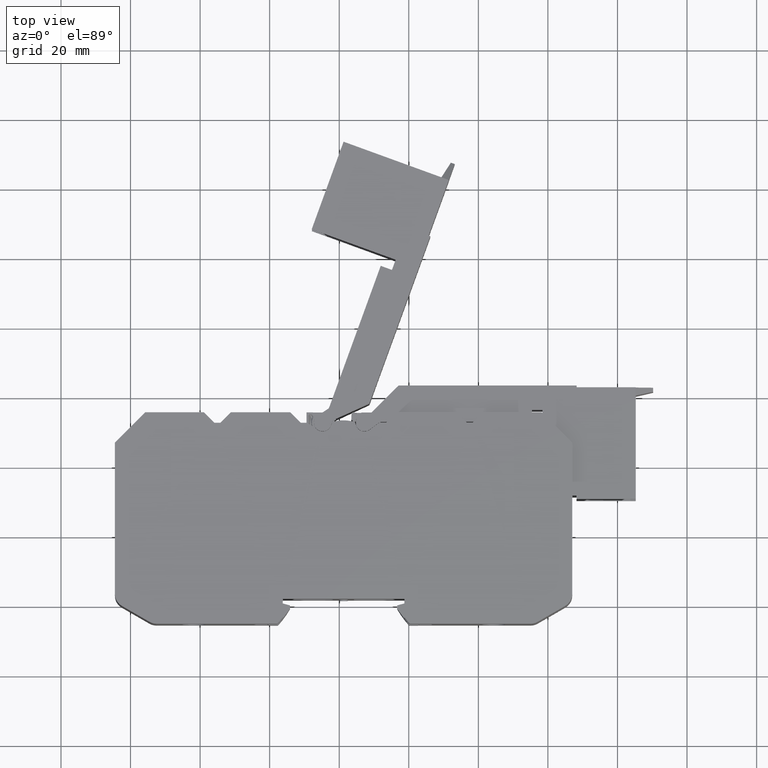
[diagram: clean part render]
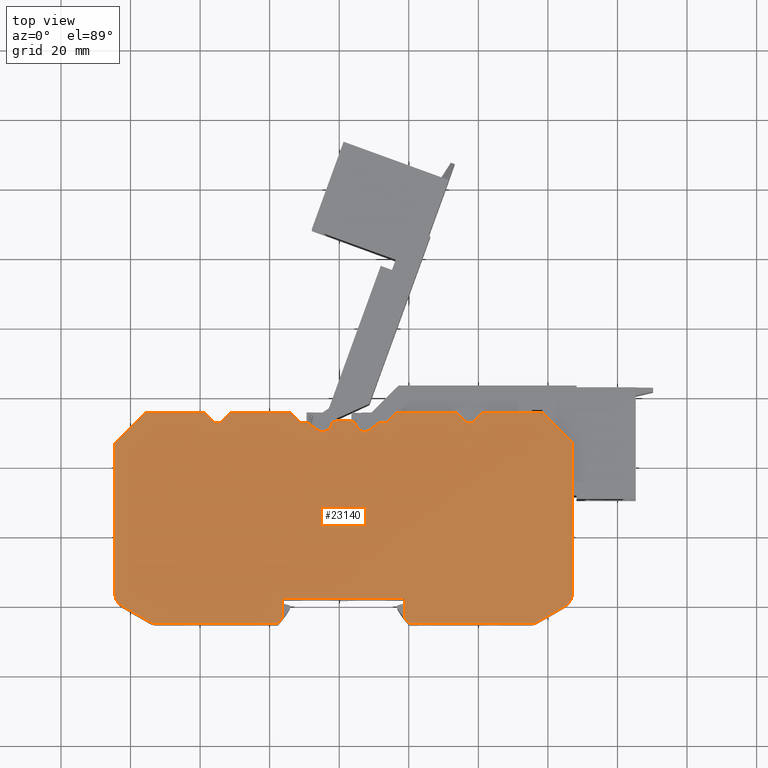
[diagram: same view with one face highlighted and labeled with its STEP entity id]
A machine part, top view. The second image highlights one B-rep face of the part: STEP entity #23140.
In plain terms, the highlighted planar face has unit normal (0, 0, -1).
Its self-contained STEP definition (entity closure, byte-faithful):
#1758 = EDGE_CURVE ( 'NONE', #12699, #12823, #12200, .T. ) ;
#1832 = EDGE_CURVE ( 'NONE', #12677, #12705, #12449, .T. ) ;
#1872 = EDGE_CURVE ( 'NONE', #12674, #12668, #6315, .T. ) ;
#1922 = EDGE_CURVE ( 'NONE', #12672, #12670, #6302, .T. ) ;
#1950 = EDGE_CURVE ( 'NONE', #12877, #12823, #7675, .T. ) ;
#2008 = EDGE_CURVE ( 'NONE', #12826, #12772, #6320, .T. ) ;
#2466 = VECTOR ( 'NONE', #5330, 1000.000000000000000 ) ;
#2471 = VECTOR ( 'NONE', #5306, 1000.000000000000000 ) ;
#2476 = VECTOR ( 'NONE', #5344, 1000.000000000000000 ) ;
#2479 = VECTOR ( 'NONE', #5271, 1000.000000000000000 ) ;
#2481 = VECTOR ( 'NONE', #5313, 1000.000000000000000 ) ;
#2485 = VECTOR ( 'NONE', #5350, 999.9999999999998900 ) ;
#2487 = VECTOR ( 'NONE', #5394, 1000.000000000000000 ) ;
#2512 = VECTOR ( 'NONE', #5264, 1000.000000000000000 ) ;
#2513 = VECTOR ( 'NONE', #5347, 1000.000000000000000 ) ;
#2517 = VECTOR ( 'NONE', #5326, 1000.000000000000100 ) ;
#2521 = VECTOR ( 'NONE', #5541, 1000.000000000000000 ) ;
#2527 = CIRCLE ( 'NONE', #2636, 0.5000000000000004400 ) ;
#2532 = VECTOR ( 'NONE', #5429, 1000.000000000000000 ) ;
#2534 = CIRCLE ( 'NONE', #2581, 29.89999999999999900 ) ;
#2544 = VECTOR ( 'NONE', #5368, 1000.000000000000000 ) ;
#2546 = CIRCLE ( 'NONE', #2570, 0.5000000000000004400 ) ;
#2547 = VECTOR ( 'NONE', #5439, 1000.000000000000000 ) ;
#2548 = CIRCLE ( 'NONE', #2572, 2.549411492192454900 ) ;
#2550 = CIRCLE ( 'NONE', #2582, 0.5000000000000004400 ) ;
#2552 = VECTOR ( 'NONE', #5446, 1000.000000000000000 ) ;
#2554 = AXIS2_PLACEMENT_3D ( 'NONE', #5407, #5375, #5403 ) ;
#2566 = CIRCLE ( 'NONE', #2554, 29.89999999999999900 ) ;
#2570 = AXIS2_PLACEMENT_3D ( 'NONE', #5402, #5376, #5365 ) ;
#2572 = AXIS2_PLACEMENT_3D ( 'NONE', #5460, #5476, #5467 ) ;
#2577 = VECTOR ( 'NONE', #5369, 1000.000000000000000 ) ;
#2581 = AXIS2_PLACEMENT_3D ( 'NONE', #5388, #5404, #5383 ) ;
#2582 = AXIS2_PLACEMENT_3D ( 'NONE', #5385, #5366, #5395 ) ;
#2585 = CIRCLE ( 'NONE', #2598, 9.999999999999650100 ) ;
#2595 = CIRCLE ( 'NONE', #2628, 9.999999999999650100 ) ;
#2598 = AXIS2_PLACEMENT_3D ( 'NONE', #5546, #5635, #5624 ) ;
#2602 = VECTOR ( 'NONE', #5634, 1000.000000000000100 ) ;
#2628 = AXIS2_PLACEMENT_3D ( 'NONE', #5526, #5545, #5523 ) ;
#2636 = AXIS2_PLACEMENT_3D ( 'NONE', #5544, #5517, #5511 ) ;
#2693 = VECTOR ( 'NONE', #5768, 1000.000000000000100 ) ;
#2710 = VECTOR ( 'NONE', #5909, 1000.000000000000000 ) ;
#2722 = AXIS2_PLACEMENT_3D ( 'NONE', #5919, #5935, #5951 ) ;
#2723 = CIRCLE ( 'NONE', #2722, 9.999999999999731800 ) ;
#2724 = VECTOR ( 'NONE', #5916, 1000.000000000000000 ) ;
#2728 = AXIS2_PLACEMENT_3D ( 'NONE', #5835, #5830, #5831 ) ;
#2729 = VECTOR ( 'NONE', #5878, 1000.000000000000000 ) ;
#2741 = AXIS2_PLACEMENT_3D ( 'NONE', #5889, #5886, #5887 ) ;
#2744 = AXIS2_PLACEMENT_3D ( 'NONE', #5996, #5995, #5975 ) ;
#2748 = VECTOR ( 'NONE', #5140, 1000.000000000000000 ) ;
#2754 = CIRCLE ( 'NONE', #2744, 3.999999523163877400 ) ;
#2757 = CIRCLE ( 'NONE', #2728, 4.000000000000003600 ) ;
#2761 = VECTOR ( 'NONE', #5874, 1000.000000000000000 ) ;
#2764 = CIRCLE ( 'NONE', #2741, 0.5000000000000004400 ) ;
#2774 = AXIS2_PLACEMENT_3D ( 'NONE', #6071, #6067, #6082 ) ;
#2781 = CIRCLE ( 'NONE', #2791, 9.999999999999731800 ) ;
#2789 = VECTOR ( 'NONE', #6084, 1000.000000000000000 ) ;
#2791 = AXIS2_PLACEMENT_3D ( 'NONE', #6035, #6029, #6017 ) ;
#2795 = VECTOR ( 'NONE', #6032, 1000.000000000000000 ) ;
#2796 = VECTOR ( 'NONE', #6012, 1000.000000000000000 ) ;
#2799 = CIRCLE ( 'NONE', #2800, 4.000000000000003600 ) ;
#2800 = AXIS2_PLACEMENT_3D ( 'NONE', #6016, #6007, #6028 ) ;
#2803 = CIRCLE ( 'NONE', #2774, 3.999999523163877400 ) ;
#2824 = VECTOR ( 'NONE', #6041, 1000.000000000000000 ) ;
#4366 = VERTEX_POINT ( 'NONE', #15978 ) ;
#4384 = VERTEX_POINT ( 'NONE', #15956 ) ;
#4400 = VERTEX_POINT ( 'NONE', #16005 ) ;
#4404 = VERTEX_POINT ( 'NONE', #15972 ) ;
#4410 = VERTEX_POINT ( 'NONE', #15940 ) ;
#4426 = VERTEX_POINT ( 'NONE', #15984 ) ;
#4427 = VERTEX_POINT ( 'NONE', #16022 ) ;
#4436 = VERTEX_POINT ( 'NONE', #15960 ) ;
#4440 = VERTEX_POINT ( 'NONE', #15999 ) ;
#4441 = VERTEX_POINT ( 'NONE', #16004 ) ;
#4443 = VERTEX_POINT ( 'NONE', #16002 ) ;
#4448 = VERTEX_POINT ( 'NONE', #16015 ) ;
#4452 = VERTEX_POINT ( 'NONE', #15934 ) ;
#4453 = VERTEX_POINT ( 'NONE', #15938 ) ;
#4461 = VERTEX_POINT ( 'NONE', #16049 ) ;
#4462 = VERTEX_POINT ( 'NONE', #16044 ) ;
#4465 = VERTEX_POINT ( 'NONE', #16122 ) ;
#4470 = VERTEX_POINT ( 'NONE', #16070 ) ;
#4493 = VERTEX_POINT ( 'NONE', #16092 ) ;
#4498 = VERTEX_POINT ( 'NONE', #16106 ) ;
#4499 = VERTEX_POINT ( 'NONE', #16059 ) ;
#4501 = VERTEX_POINT ( 'NONE', #16114 ) ;
#4507 = VERTEX_POINT ( 'NONE', #16074 ) ;
#4509 = VERTEX_POINT ( 'NONE', #16120 ) ;
#4512 = VERTEX_POINT ( 'NONE', #16064 ) ;
#4519 = VERTEX_POINT ( 'NONE', #16132 ) ;
#4521 = VERTEX_POINT ( 'NONE', #16127 ) ;
#4522 = VERTEX_POINT ( 'NONE', #16162 ) ;
#4526 = VERTEX_POINT ( 'NONE', #16143 ) ;
#4530 = VERTEX_POINT ( 'NONE', #16140 ) ;
#4532 = VERTEX_POINT ( 'NONE', #16185 ) ;
#4535 = VERTEX_POINT ( 'NONE', #16180 ) ;
#4548 = VERTEX_POINT ( 'NONE', #16192 ) ;
#4550 = VERTEX_POINT ( 'NONE', #16141 ) ;
#4559 = VERTEX_POINT ( 'NONE', #16190 ) ;
#4563 = VERTEX_POINT ( 'NONE', #16158 ) ;
#4564 = VERTEX_POINT ( 'NONE', #16152 ) ;
#4571 = VERTEX_POINT ( 'NONE', #16197 ) ;
#4927 = LINE ( 'NONE', #5128, #2748 ) ;
#5128 = CARTESIAN_POINT ( 'NONE',  ( 225.2499825394654900, -20.02097480694916200, 29.24999999999741700 ) ) ;
#5140 = DIRECTION ( 'NONE',  ( -0.8660254037844387100, -0.4999999999999998900, -0.0000000000000000000 ) ) ;
#5264 = DIRECTION ( 'NONE',  ( 0.7071067811865622300, 0.7071067811865328100, 4.906538933386532200E-015 ) ) ;
#5266 = LINE ( 'NONE', #5298, #2471 ) ;
#5270 = LINE ( 'NONE', #5283, #2481 ) ;
#5271 = DIRECTION ( 'NONE',  ( 1.000000000000000000, -0.0000000000000000000, 0.0000000000000000000 ) ) ;
#5277 = LINE ( 'NONE', #5293, #2479 ) ;
#5283 = CARTESIAN_POINT ( 'NONE',  ( 233.6974991621285400, 35.50000057880245700, 29.24999999999764100 ) ) ;
#5287 = CARTESIAN_POINT ( 'NONE',  ( 125.8742680895597100, 32.50000057880237100, 29.24999999999762300 ) ) ;
#5293 = CARTESIAN_POINT ( 'NONE',  ( 233.6974991621285400, 35.50000057880244200, 29.24999999999764100 ) ) ;
#5295 = LINE ( 'NONE', #5351, #2485 ) ;
#5296 = LINE ( 'NONE', #5287, #2512 ) ;
#5297 = LINE ( 'NONE', #5299, #2476 ) ;
#5298 = CARTESIAN_POINT ( 'NONE',  ( 193.6257184707571900, 35.50000057880247100, 29.24999999999764100 ) ) ;
#5299 = CARTESIAN_POINT ( 'NONE',  ( 173.5393101197366000, 32.50000057880246400, 29.24999999999762300 ) ) ;
#5306 = DIRECTION ( 'NONE',  ( 0.7071067811865638900, -0.7071067811865311400, -4.906538933386543200E-015 ) ) ;
#5313 = DIRECTION ( 'NONE',  ( 1.000000000000000000, -0.0000000000000000000, 0.0000000000000000000 ) ) ;
#5317 = LINE ( 'NONE', #5325, #2517 ) ;
#5318 = CARTESIAN_POINT ( 'NONE',  ( 233.6974991621285400, 32.50000057880240700, 29.24999999999762300 ) ) ;
#5325 = CARTESIAN_POINT ( 'NONE',  ( 151.0645651046465000, 32.44323401411013200, 29.24999999999762300 ) ) ;
#5326 = DIRECTION ( 'NONE',  ( 0.8009369842318456700, -0.5987486511797720500, -4.179825119607843800E-015 ) ) ;
#5329 = CARTESIAN_POINT ( 'NONE',  ( 233.6974991621285400, 32.50000057880240700, 29.24999999999762300 ) ) ;
#5330 = DIRECTION ( 'NONE',  ( 1.000000000000000000, -0.0000000000000000000, 0.0000000000000000000 ) ) ;
#5332 = CARTESIAN_POINT ( 'NONE',  ( 154.9723634633745600, 29.94847183052508700, 29.24999999999760500 ) ) ;
#5334 = LINE ( 'NONE', #5329, #2466 ) ;
#5339 = CARTESIAN_POINT ( 'NONE',  ( 154.7055722217895900, 29.99143437643514800, 29.24999999999760900 ) ) ;
#5343 = LINE ( 'NONE', #5318, #2513 ) ;
#5344 = DIRECTION ( 'NONE',  ( 0.7071067811865328100, 0.7071067811865622300, 4.906538933386917100E-015 ) ) ;
#5345 = CARTESIAN_POINT ( 'NONE',  ( 153.7238231349545300, 30.45527841943501100, 29.24999999999758400 ) ) ;
#5346 = CARTESIAN_POINT ( 'NONE',  ( 153.9456618610621200, 30.29029652646540100, 29.24999999999761300 ) ) ;
#5347 = DIRECTION ( 'NONE',  ( 1.000000000000000000, -0.0000000000000000000, 0.0000000000000000000 ) ) ;
#5348 = LINE ( 'NONE', #5399, #2487 ) ;
#5350 = DIRECTION ( 'NONE',  ( 0.7071067811865376900, -0.7071067811865574500, -4.906538933386816200E-015 ) ) ;
#5351 = CARTESIAN_POINT ( 'NONE',  ( 145.9606764405804700, 35.50000057880244200, 29.24999999999764100 ) ) ;
#5359 = CARTESIAN_POINT ( 'NONE',  ( 155.2502798272069800, 29.94778487936507000, 29.24999999999749200 ) ) ;
#5361 = CARTESIAN_POINT ( 'NONE',  ( 154.1863794236506400, 30.16453133927149500, 29.24999999999760200 ) ) ;
#5365 = DIRECTION ( 'NONE',  ( 0.0000000000000000000, 1.000000000000000000, 6.938893903907222100E-015 ) ) ;
#5366 = DIRECTION ( 'NONE',  ( 0.0000000000000000000, 3.491483361109380100E-015, -1.000000000000000000 ) ) ;
#5368 = DIRECTION ( 'NONE',  ( 0.7071067811864232300, 0.7071067811866718100, 4.906538933388472000E-015 ) ) ;
#5369 = DIRECTION ( 'NONE',  ( 1.000000000000000000, -0.0000000000000000000, 0.0000000000000000000 ) ) ;
#5371 = CARTESIAN_POINT ( 'NONE',  ( 198.3742466081829400, 32.50000057880298200, 29.24999999999762300 ) ) ;
#5375 = DIRECTION ( 'NONE',  ( 0.0000000000000000000, 3.491483361109380100E-015, -1.000000000000000000 ) ) ;
#5376 = DIRECTION ( 'NONE',  ( 0.0000000000000000000, 3.491483361109380100E-015, -1.000000000000000000 ) ) ;
#5379 = LINE ( 'NONE', #5405, #2577 ) ;
#5383 = DIRECTION ( 'NONE',  ( 0.0000000000000000000, 1.000000000000000000, 3.481050453465165000E-015 ) ) ;
#5385 = CARTESIAN_POINT ( 'NONE',  ( 143.2499933619777400, -23.34465288556645700, 29.24999999999723200 ) ) ;
#5388 = CARTESIAN_POINT ( 'NONE',  ( 202.4537833536635400, -5.290730042545572300, 29.24999999999728900 ) ) ;
#5394 = DIRECTION ( 'NONE',  ( 1.000000000000000000, -0.0000000000000000000, 0.0000000000000000000 ) ) ;
#5395 = DIRECTION ( 'NONE',  ( 0.0000000000000000000, 1.000000000000000000, 6.938893903907222100E-015 ) ) ;
#5396 = LINE ( 'NONE', #5371, #2544 ) ;
#5399 = CARTESIAN_POINT ( 'NONE',  ( 233.6974991621285400, 35.50000057880248500, 29.24999999999764100 ) ) ;
#5402 = CARTESIAN_POINT ( 'NONE',  ( 179.2499933619780800, -23.34465288556664600, 29.24999999999722900 ) ) ;
#5403 = DIRECTION ( 'NONE',  ( 0.0000000000000000000, 1.000000000000000000, 3.481050453465165000E-015 ) ) ;
#5404 = DIRECTION ( 'NONE',  ( 0.0000000000000000000, 3.491483361109380100E-015, -1.000000000000000000 ) ) ;
#5405 = CARTESIAN_POINT ( 'NONE',  ( 233.6974991621285400, 35.50000057880247100, 29.24999999999764100 ) ) ;
#5407 = CARTESIAN_POINT ( 'NONE',  ( 120.0462033702921500, -5.290730042545572300, 29.24999999999729300 ) ) ;
#5415 = LINE ( 'NONE', #5438, #2552 ) ;
#5426 = LINE ( 'NONE', #5453, #2532 ) ;
#5429 = DIRECTION ( 'NONE',  ( 0.7071067811865524600, -0.7071067811865426900, -4.906538933386736500E-015 ) ) ;
#5438 = CARTESIAN_POINT ( 'NONE',  ( 233.6974991621285400, 32.50000057880243500, 29.24999999999762300 ) ) ;
#5439 = DIRECTION ( 'NONE',  ( 1.000000000000000000, -0.0000000000000000000, 0.0000000000000000000 ) ) ;
#5444 = LINE ( 'NONE', #5445, #2547 ) ;
#5445 = CARTESIAN_POINT ( 'NONE',  ( 233.6974991621285400, 32.50000057880238600, 29.24999999999762300 ) ) ;
#5446 = DIRECTION ( 'NONE',  ( 1.000000000000000000, -0.0000000000000000000, 0.0000000000000000000 ) ) ;
#5453 = CARTESIAN_POINT ( 'NONE',  ( 121.1257399521355000, 35.50000057880242800, 29.24999999999764100 ) ) ;
#5460 = CARTESIAN_POINT ( 'NONE',  ( 167.2497067331099700, 32.49719637155752800, 29.24999999999760200 ) ) ;
#5467 = DIRECTION ( 'NONE',  ( 0.0000000000000000000, -1.000000000000000000, -6.804407532049568800E-015 ) ) ;
#5476 = DIRECTION ( 'NONE',  ( 0.0000000000000000000, -6.982966722218760200E-015, 1.000000000000000000 ) ) ;
#5510 = LINE ( 'NONE', #5543, #2521 ) ;
#5511 = DIRECTION ( 'NONE',  ( 0.0000000000000000000, 1.000000000000000000, 6.938893903907222100E-015 ) ) ;
#5517 = DIRECTION ( 'NONE',  ( 0.0000000000000000000, 3.491483361109380100E-015, -1.000000000000000000 ) ) ;
#5523 = DIRECTION ( 'NONE',  ( 3.053113317719287100E-014, -1.000000000000000000, -6.938893903907471300E-015 ) ) ;
#5526 = CARTESIAN_POINT ( 'NONE',  ( 161.2465384377315200, 23.18531097300271800, 29.24999999999751700 ) ) ;
#5541 = DIRECTION ( 'NONE',  ( 0.8009369842318255800, 0.5987486511797988100, 4.179825119607826500E-015 ) ) ;
#5543 = CARTESIAN_POINT ( 'NONE',  ( 168.7761634253624800, 30.45527841943497500, 29.24999999999760900 ) ) ;
#5544 = CARTESIAN_POINT ( 'NONE',  ( 142.0404841206863600, -24.80000000000009700, 29.24999999999722200 ) ) ;
#5545 = DIRECTION ( 'NONE',  ( -0.0000000000000000000, 6.982966722218760200E-015, -1.000000000000000000 ) ) ;
#5546 = CARTESIAN_POINT ( 'NONE',  ( 161.2534481225849800, 23.18531097300271800, 29.24999999999738200 ) ) ;
#5614 = LINE ( 'NONE', #5628, #2602 ) ;
#5624 = DIRECTION ( 'NONE',  ( 7.494005416220069200E-014, -1.000000000000000000, -6.938893903907471300E-015 ) ) ;
#5628 = CARTESIAN_POINT ( 'NONE',  ( 95.50000402085248700, 26.75000096623260500, 29.24999999999758100 ) ) ;
#5634 = DIRECTION ( 'NONE',  ( 0.7071067811865474600, 0.7071067811865474600, 5.046725983512575700E-015 ) ) ;
#5635 = DIRECTION ( 'NONE',  ( -0.0000000000000000000, 6.982966722218760200E-015, -1.000000000000000000 ) ) ;
#5716 = LINE ( 'NONE', #5725, #2693 ) ;
#5725 = CARTESIAN_POINT ( 'NONE',  ( 218.2499829268945700, 35.50000057880249900, 29.24999999999764100 ) ) ;
#5768 = DIRECTION ( 'NONE',  ( 0.7071067773684481800, -0.7071067850046469600, -5.046725911142736600E-015 ) ) ;
#5830 = DIRECTION ( 'NONE',  ( 0.0000000000000000000, 0.0000000000000000000, -1.000000000000000000 ) ) ;
#5831 = DIRECTION ( 'NONE',  ( -1.000000000000000000, 0.0000000000000000000, 0.0000000000000000000 ) ) ;
#5835 = CARTESIAN_POINT ( 'NONE',  ( 222.9999825394646100, -16.70121075910937600, 29.24999999999744600 ) ) ;
#5866 = LINE ( 'NONE', #5882, #2710 ) ;
#5872 = CARTESIAN_POINT ( 'NONE',  ( 143.7499933619777400, -23.66145471572056600, 29.24999999999723200 ) ) ;
#5874 = DIRECTION ( 'NONE',  ( 0.0000000000000000000, 1.000000000000000000, -0.0000000000000000000 ) ) ;
#5878 = DIRECTION ( 'NONE',  ( -1.000000000000000000, -2.532391577116828700E-028, 9.183791172684809200E-042 ) ) ;
#5882 = CARTESIAN_POINT ( 'NONE',  ( 226.9999825394645000, -16.55687319181060200, 29.24999999999755600 ) ) ;
#5886 = DIRECTION ( 'NONE',  ( 0.0000000000000000000, 3.491483361109380100E-015, -1.000000000000000000 ) ) ;
#5887 = DIRECTION ( 'NONE',  ( 0.0000000000000000000, 1.000000000000000000, 6.938893903907222100E-015 ) ) ;
#5889 = CARTESIAN_POINT ( 'NONE',  ( 180.4595026032693600, -24.80000000000009700, 29.24999999999738900 ) ) ;
#5892 = LINE ( 'NONE', #5872, #2761 ) ;
#5902 = CARTESIAN_POINT ( 'NONE',  ( 143.4999933631697800, -18.09999999999964300, 29.24999999999727200 ) ) ;
#5909 = DIRECTION ( 'NONE',  ( -0.0000000000000000000, -1.000000000000000000, -0.0000000000000000000 ) ) ;
#5914 = LINE ( 'NONE', #5902, #2729 ) ;
#5916 = DIRECTION ( 'NONE',  ( -1.000000000000000000, 4.876179600077876300E-029, 1.702509993945289600E-043 ) ) ;
#5919 = CARTESIAN_POINT ( 'NONE',  ( 161.2500074067600100, 23.18624660394640100, 29.24999999999752700 ) ) ;
#5935 = DIRECTION ( 'NONE',  ( -0.0000000000000000000, -0.0000000000000000000, -1.000000000000000000 ) ) ;
#5941 = LINE ( 'NONE', #5945, #2724 ) ;
#5945 = CARTESIAN_POINT ( 'NONE',  ( 183.3999826218845600, -25.30000000000009300, 29.24999999999738900 ) ) ;
#5951 = DIRECTION ( 'NONE',  ( 1.000000000000000000, -6.938893903907414500E-015, 0.0000000000000000000 ) ) ;
#5968 = LINE ( 'NONE', #6015, #2796 ) ;
#5975 = DIRECTION ( 'NONE',  ( 1.000000000000000000, 0.0000000000000000000, 0.0000000000000000000 ) ) ;
#5995 = DIRECTION ( 'NONE',  ( -0.0000000000000000000, -0.0000000000000000000, -1.000000000000000000 ) ) ;
#5996 = CARTESIAN_POINT ( 'NONE',  ( 215.0346468746124900, -21.30000000000034900, 29.24999999999738900 ) ) ;
#5999 = LINE ( 'NONE', #6040, #2824 ) ;
#6002 = CARTESIAN_POINT ( 'NONE',  ( 178.7499933619780600, -18.10000000000055200, 29.24999999999727200 ) ) ;
#6007 = DIRECTION ( 'NONE',  ( -0.0000000000000000000, -0.0000000000000000000, -1.000000000000000000 ) ) ;
#6012 = DIRECTION ( 'NONE',  ( 0.0000000000000000000, 1.000000000000000000, -0.0000000000000000000 ) ) ;
#6015 = CARTESIAN_POINT ( 'NONE',  ( 95.50000402085250100, -16.55687319181060200, 29.24999999999738900 ) ) ;
#6016 = CARTESIAN_POINT ( 'NONE',  ( 99.50000402085250100, -16.70121075910955400, 29.24999999999738900 ) ) ;
#6017 = DIRECTION ( 'NONE',  ( 1.000000000000000000, -7.979727989493527200E-015, 0.0000000000000000000 ) ) ;
#6028 = DIRECTION ( 'NONE',  ( 1.000000000000000000, 2.602085213965208300E-015, 0.0000000000000000000 ) ) ;
#6029 = DIRECTION ( 'NONE',  ( -0.0000000000000000000, -0.0000000000000000000, -1.000000000000000000 ) ) ;
#6031 = LINE ( 'NONE', #6002, #2795 ) ;
#6032 = DIRECTION ( 'NONE',  ( 4.990704237359670400E-015, -1.000000000000000000, -0.0000000000000000000 ) ) ;
#6035 = CARTESIAN_POINT ( 'NONE',  ( 161.2499791535569800, 23.18624660394640100, 29.24999999999747000 ) ) ;
#6040 = CARTESIAN_POINT ( 'NONE',  ( 97.25000402085119300, -20.02097480694916200, 29.24999999999738900 ) ) ;
#6041 = DIRECTION ( 'NONE',  ( -0.8660254037844387100, 0.4999999999999998900, -0.0000000000000000000 ) ) ;
#6067 = DIRECTION ( 'NONE',  ( -0.0000000000000000000, -0.0000000000000000000, -1.000000000000000000 ) ) ;
#6069 = CARTESIAN_POINT ( 'NONE',  ( 139.1000041032632200, -25.30000000000009300, 29.24999999999724300 ) ) ;
#6071 = CARTESIAN_POINT ( 'NONE',  ( 107.4653396857041900, -21.30000000000034900, 29.24999999999738900 ) ) ;
#6076 = LINE ( 'NONE', #6069, #2789 ) ;
#6082 = DIRECTION ( 'NONE',  ( 1.000000000000000000, -1.734723682771535800E-015, 0.0000000000000000000 ) ) ;
#6084 = DIRECTION ( 'NONE',  ( -1.000000000000000000, 4.876179600077876300E-029, 1.702509993945289600E-043 ) ) ;
#6302 = B_SPLINE_CURVE_WITH_KNOTS ( 'NONE', 3,
 ( #14009, #13977, #13966, #13979 ),
 .UNSPECIFIED., .F., .F.,
 ( 4, 4 ),
 ( 0.0000000000000000000, 1.000000000000000000 ),
 .UNSPECIFIED. ) ;
#6315 = B_SPLINE_CURVE_WITH_KNOTS ( 'NONE', 3,
 ( #13811, #13778, #13812, #13787 ),
 .UNSPECIFIED., .F., .F.,
 ( 4, 4 ),
 ( 0.0000000000000000000, 1.000000000000000000 ),
 .UNSPECIFIED. ) ;
#6320 = B_SPLINE_CURVE_WITH_KNOTS ( 'NONE', 3,
 ( #14611, #14606, #14610, #14616, #14617, #14567 ),
 .UNSPECIFIED., .F., .F.,
 ( 4, 2, 4 ),
 ( 0.0000000000000000000, 0.5000000000000000000, 1.000000000000000000 ),
 .UNSPECIFIED. ) ;
#7574 = VECTOR ( 'NONE', #12467, 1000.000000000000000 ) ;
#7675 = CIRCLE ( 'NONE', #7692, 2.549411492192454900 ) ;
#7692 = AXIS2_PLACEMENT_3D ( 'NONE', #14107, #14133, #14170 ) ;
#8103 = VECTOR ( 'NONE', #12227, 1000.000000000000000 ) ;
#9589 = EDGE_LOOP ( 'NONE', ( #9738, #9760, #9687, #9729, #9718, #9740, #9684, #9739, #9682, #9776, #9715, #9777, #9773, #9688, #9695, #9752, #9681, #9774, #9753, #9789, #9717, #9704, #9736, #9691, #9731, #9679, #9771, #9781, #9743, #9795, #9749, #9772, #9810, #9823, #9798, #9784, #9745, #9787, #9835, #9768, #9778, #9761, #9762, #9780, #9791, #9748, #9832, #9822, #9755, #9750, #9806 ) ) ;
#9679 = ORIENTED_EDGE ( 'NONE', *, *, #19441, .F. ) ;
#9681 = ORIENTED_EDGE ( 'NONE', *, *, #30634, .F. ) ;
#9682 = ORIENTED_EDGE ( 'NONE', *, *, #30852, .F. ) ;
#9684 = ORIENTED_EDGE ( 'NONE', *, *, #30823, .F. ) ;
#9687 = ORIENTED_EDGE ( 'NONE', *, *, #30824, .F. ) ;
#9688 = ORIENTED_EDGE ( 'NONE', *, *, #30650, .F. ) ;
#9691 = ORIENTED_EDGE ( 'NONE', *, *, #30681, .F. ) ;
#9695 = ORIENTED_EDGE ( 'NONE', *, *, #30655, .F. ) ;
#9704 = ORIENTED_EDGE ( 'NONE', *, *, #30700, .F. ) ;
#9715 = ORIENTED_EDGE ( 'NONE', *, *, #30812, .F. ) ;
#9717 = ORIENTED_EDGE ( 'NONE', *, *, #1922, .F. ) ;
#9718 = ORIENTED_EDGE ( 'NONE', *, *, #30660, .F. ) ;
#9729 = ORIENTED_EDGE ( 'NONE', *, *, #30871, .T. ) ;
#9731 = ORIENTED_EDGE ( 'NONE', *, *, #1832, .T. ) ;
#9736 = ORIENTED_EDGE ( 'NONE', *, *, #2008, .T. ) ;
#9738 = ORIENTED_EDGE ( 'NONE', *, *, #30653, .F. ) ;
#9739 = ORIENTED_EDGE ( 'NONE', *, *, #30837, .F. ) ;
#9740 = ORIENTED_EDGE ( 'NONE', *, *, #30657, .F. ) ;
#9743 = ORIENTED_EDGE ( 'NONE', *, *, #30833, .F. ) ;
#9745 = ORIENTED_EDGE ( 'NONE', *, *, #30642, .F. ) ;
#9748 = ORIENTED_EDGE ( 'NONE', *, *, #30874, .F. ) ;
#9749 = ORIENTED_EDGE ( 'NONE', *, *, #19440, .F. ) ;
#9750 = ORIENTED_EDGE ( 'NONE', *, *, #30702, .F. ) ;
#9752 = ORIENTED_EDGE ( 'NONE', *, *, #30671, .F. ) ;
#9753 = ORIENTED_EDGE ( 'NONE', *, *, #30635, .F. ) ;
#9755 = ORIENTED_EDGE ( 'NONE', *, *, #30885, .F. ) ;
#9760 = ORIENTED_EDGE ( 'NONE', *, *, #30827, .T. ) ;
#9761 = ORIENTED_EDGE ( 'NONE', *, *, #30678, .F. ) ;
#9762 = ORIENTED_EDGE ( 'NONE', *, *, #30625, .F. ) ;
#9768 = ORIENTED_EDGE ( 'NONE', *, *, #30632, .F. ) ;
#9771 = ORIENTED_EDGE ( 'NONE', *, *, #30724, .F. ) ;
#9772 = ORIENTED_EDGE ( 'NONE', *, *, #1758, .T. ) ;
#9773 = ORIENTED_EDGE ( 'NONE', *, *, #30775, .F. ) ;
#9774 = ORIENTED_EDGE ( 'NONE', *, *, #30630, .F. ) ;
#9776 = ORIENTED_EDGE ( 'NONE', *, *, #30846, .F. ) ;
#9777 = ORIENTED_EDGE ( 'NONE', *, *, #30817, .F. ) ;
#9778 = ORIENTED_EDGE ( 'NONE', *, *, #30649, .F. ) ;
#9780 = ORIENTED_EDGE ( 'NONE', *, *, #30729, .F. ) ;
#9781 = ORIENTED_EDGE ( 'NONE', *, *, #30870, .F. ) ;
#9784 = ORIENTED_EDGE ( 'NONE', *, *, #1872, .F. ) ;
#9787 = ORIENTED_EDGE ( 'NONE', *, *, #30640, .F. ) ;
#9789 = ORIENTED_EDGE ( 'NONE', *, *, #30667, .F. ) ;
#9791 = ORIENTED_EDGE ( 'NONE', *, *, #30864, .F. ) ;
#9795 = ORIENTED_EDGE ( 'NONE', *, *, #30703, .F. ) ;
#9798 = ORIENTED_EDGE ( 'NONE', *, *, #30638, .F. ) ;
#9806 = ORIENTED_EDGE ( 'NONE', *, *, #30656, .F. ) ;
#9810 = ORIENTED_EDGE ( 'NONE', *, *, #1950, .F. ) ;
#9822 = ORIENTED_EDGE ( 'NONE', *, *, #30881, .F. ) ;
#9823 = ORIENTED_EDGE ( 'NONE', *, *, #30647, .T. ) ;
#9832 = ORIENTED_EDGE ( 'NONE', *, *, #30873, .F. ) ;
#9835 = ORIENTED_EDGE ( 'NONE', *, *, #30661, .F. ) ;
#12200 = LINE ( 'NONE', #12212, #8103 ) ;
#12212 = CARTESIAN_POINT ( 'NONE',  ( 158.0715241091570000, 32.80192665362079700, 29.24999999999755200 ) ) ;
#12227 = DIRECTION ( 'NONE',  ( -0.3401132867224381200, -0.9403844704134902700, -0.0000000000000000000 ) ) ;
#12444 = CARTESIAN_POINT ( 'NONE',  ( 164.4284624511595000, 32.80192665362079700, 29.24999999999757700 ) ) ;
#12449 = LINE ( 'NONE', #12444, #7574 ) ;
#12467 = DIRECTION ( 'NONE',  ( -0.3401132867224381200, 0.9403844704134902700, -0.0000000000000000000 ) ) ;
#12667 = VERTEX_POINT ( 'NONE', #26444 ) ;
#12668 = VERTEX_POINT ( 'NONE', #26445 ) ;
#12670 = VERTEX_POINT ( 'NONE', #26436 ) ;
#12672 = VERTEX_POINT ( 'NONE', #26441 ) ;
#12674 = VERTEX_POINT ( 'NONE', #26472 ) ;
#12677 = VERTEX_POINT ( 'NONE', #26476 ) ;
#12699 = VERTEX_POINT ( 'NONE', #26466 ) ;
#12705 = VERTEX_POINT ( 'NONE', #26507 ) ;
#12741 = VERTEX_POINT ( 'NONE', #26508 ) ;
#12772 = VERTEX_POINT ( 'NONE', #26558 ) ;
#12823 = VERTEX_POINT ( 'NONE', #26581 ) ;
#12826 = VERTEX_POINT ( 'NONE', #26595 ) ;
#12877 = VERTEX_POINT ( 'NONE', #26647 ) ;
#13778 = CARTESIAN_POINT ( 'NONE',  ( 150.9204208819805900, 32.51094935708881200, 29.24999999999761600 ) ) ;
#13787 = CARTESIAN_POINT ( 'NONE',  ( 151.0645651046465000, 32.44323401411013200, 29.24999999999762300 ) ) ;
#13811 = CARTESIAN_POINT ( 'NONE',  ( 150.8429561346837000, 32.50000057880229300, 29.24999999999762300 ) ) ;
#13812 = CARTESIAN_POINT ( 'NONE',  ( 151.0019040679371200, 32.49007691430051600, 29.24999999999761300 ) ) ;
#13966 = CARTESIAN_POINT ( 'NONE',  ( 171.5795656783347500, 32.51094935708846400, 29.24999999999760900 ) ) ;
#13977 = CARTESIAN_POINT ( 'NONE',  ( 171.4980824923791500, 32.49007691430016100, 29.24999999999760500 ) ) ;
#13979 = CARTESIAN_POINT ( 'NONE',  ( 171.6570304256309500, 32.50000057880242800, 29.24999999999761600 ) ) ;
#14009 = CARTESIAN_POINT ( 'NONE',  ( 171.4354214556704500, 32.44323401411018900, 29.24999999999761300 ) ) ;
#14107 = CARTESIAN_POINT ( 'NONE',  ( 155.2502798272069800, 32.49719637155752800, 29.24999999999740700 ) ) ;
#14133 = DIRECTION ( 'NONE',  ( 0.0000000000000000000, -6.982966722218760200E-015, 1.000000000000000000 ) ) ;
#14170 = DIRECTION ( 'NONE',  ( 0.0000000000000000000, -1.000000000000000000, -6.804407532049568800E-015 ) ) ;
#14567 = CARTESIAN_POINT ( 'NONE',  ( 167.2497067331099700, 29.94778487936507000, 29.24999999999759500 ) ) ;
#14606 = CARTESIAN_POINT ( 'NONE',  ( 168.5531586199588800, 30.28942657603495500, 29.24999999999760500 ) ) ;
#14610 = CARTESIAN_POINT ( 'NONE',  ( 168.3137518811045400, 30.16409597195045900, 29.24999999999760900 ) ) ;
#14611 = CARTESIAN_POINT ( 'NONE',  ( 168.7761634253624800, 30.45527841943497500, 29.24999999999760500 ) ) ;
#14616 = CARTESIAN_POINT ( 'NONE',  ( 167.7942695940894600, 29.99186974375621200, 29.24999999999760900 ) ) ;
#14617 = CARTESIAN_POINT ( 'NONE',  ( 167.5261682592604900, 29.94847041759345900, 29.24999999999760900 ) ) ;
#15934 = CARTESIAN_POINT ( 'NONE',  ( 148.9606764405804100, 32.50000057880240700, 29.24999999999762700 ) ) ;
#15938 = CARTESIAN_POINT ( 'NONE',  ( 193.6257184707571900, 35.50000057880245700, 29.24999999999764100 ) ) ;
#15940 = CARTESIAN_POINT ( 'NONE',  ( 176.5393101197364800, 35.50000057880245700, 29.24999999999764100 ) ) ;
#15956 = CARTESIAN_POINT ( 'NONE',  ( 145.9606764405804100, 35.50000057880246400, 29.24999999999764100 ) ) ;
#15960 = CARTESIAN_POINT ( 'NONE',  ( 198.3742466081823700, 32.50000057880279100, 29.24999999999762300 ) ) ;
#15972 = CARTESIAN_POINT ( 'NONE',  ( 218.2499829268945700, 35.50000057880249200, 29.24999999999764100 ) ) ;
#15978 = CARTESIAN_POINT ( 'NONE',  ( 125.8742680895597600, 32.50000057880237800, 29.24999999999762300 ) ) ;
#15984 = CARTESIAN_POINT ( 'NONE',  ( 201.3742466081814100, 35.50000057880247800, 29.24999999999764100 ) ) ;
#15999 = CARTESIAN_POINT ( 'NONE',  ( 143.7499933619777400, -23.34465288556644000, 29.24999999999723200 ) ) ;
#16002 = CARTESIAN_POINT ( 'NONE',  ( 124.1257399521355600, 32.50000057880241400, 29.24999999999762700 ) ) ;
#16004 = CARTESIAN_POINT ( 'NONE',  ( 196.6257184707574200, 32.50000057880238600, 29.24999999999762700 ) ) ;
#16005 = CARTESIAN_POINT ( 'NONE',  ( 173.5393101197366000, 32.50000057880247100, 29.24999999999762300 ) ) ;
#16015 = CARTESIAN_POINT ( 'NONE',  ( 178.7499933619780800, -23.34465288556664900, 29.24999999999725000 ) ) ;
#16022 = CARTESIAN_POINT ( 'NONE',  ( 153.7238231349545300, 30.45527841943501100, 29.24999999999758400 ) ) ;
#16044 = CARTESIAN_POINT ( 'NONE',  ( 158.6441844522286700, 32.84076299419776000, 29.24999999999755600 ) ) ;
#16049 = CARTESIAN_POINT ( 'NONE',  ( 121.1257399521354900, 35.50000057880244200, 29.24999999999764100 ) ) ;
#16059 = CARTESIAN_POINT ( 'NONE',  ( 217.0346466361944500, -24.76410120218589100, 29.24999999999740300 ) ) ;
#16064 = CARTESIAN_POINT ( 'NONE',  ( 180.0854502095551500, -25.13179030539898300, 29.24999999999730700 ) ) ;
#16070 = CARTESIAN_POINT ( 'NONE',  ( 128.8742680895599300, 35.50000057880246400, 29.24999999999764100 ) ) ;
#16074 = CARTESIAN_POINT ( 'NONE',  ( 142.0404841206863600, -25.30000000000009300, 29.24999999999722900 ) ) ;
#16092 = CARTESIAN_POINT ( 'NONE',  ( 95.50000402085250100, 26.75000096623260900, 29.24999999999745600 ) ) ;
#16106 = CARTESIAN_POINT ( 'NONE',  ( 180.4595026032693600, -25.30000000000009300, 29.24999999999738900 ) ) ;
#16114 = CARTESIAN_POINT ( 'NONE',  ( 163.8558020389945700, 32.84076301284666500, 29.24999999999747000 ) ) ;
#16120 = CARTESIAN_POINT ( 'NONE',  ( 143.6446156407479000, -23.65169238969946600, 29.24999999999722900 ) ) ;
#16122 = CARTESIAN_POINT ( 'NONE',  ( 104.2500036334223400, 35.50000057880245000, 29.24999999999763700 ) ) ;
#16127 = CARTESIAN_POINT ( 'NONE',  ( 226.9999825394645800, -16.70121075910937200, 29.24999999999744600 ) ) ;
#16132 = CARTESIAN_POINT ( 'NONE',  ( 143.7499933619777400, -18.09999999999964300, 29.24999999999726100 ) ) ;
#16140 = CARTESIAN_POINT ( 'NONE',  ( 105.4653399241222200, -24.76410120218589100, 29.24999999999738900 ) ) ;
#16141 = CARTESIAN_POINT ( 'NONE',  ( 95.50000402085250100, -16.70121075910955400, 29.24999999999738900 ) ) ;
#16143 = CARTESIAN_POINT ( 'NONE',  ( 161.2499932801584900, 33.18624660393615500, 29.24999999999749900 ) ) ;
#16152 = CARTESIAN_POINT ( 'NONE',  ( 215.0346468746125500, -25.30000000000009300, 29.24999999999738900 ) ) ;
#16158 = CARTESIAN_POINT ( 'NONE',  ( 97.50000402085248700, -20.16531237424731100, 29.24999999999738900 ) ) ;
#16162 = CARTESIAN_POINT ( 'NONE',  ( 178.8553710832079300, -23.65169238969965800, 29.24999999999722500 ) ) ;
#16180 = CARTESIAN_POINT ( 'NONE',  ( 142.4145365144005700, -25.13179030539898700, 29.24999999999722200 ) ) ;
#16185 = CARTESIAN_POINT ( 'NONE',  ( 226.9999826178215300, 26.75000079364056700, 29.24999999999755900 ) ) ;
#16190 = CARTESIAN_POINT ( 'NONE',  ( 178.7499933619780600, -18.09999999999964300, 29.24999999999726800 ) ) ;
#16192 = CARTESIAN_POINT ( 'NONE',  ( 224.9999825394646400, -20.16531237424707600, 29.24999999999743100 ) ) ;
#16197 = CARTESIAN_POINT ( 'NONE',  ( 107.4653396857041500, -25.29999976158216100, 29.24999999999738900 ) ) ;
#17209 = B_SPLINE_CURVE_WITH_KNOTS ( 'NONE', 3,
 ( #28379, #28380, #28354, #28389 ),
 .UNSPECIFIED., .F., .F.,
 ( 4, 4 ),
 ( 0.0000000000000000000, 1.000000000000000000 ),
 .UNSPECIFIED. ) ;
#17228 = B_SPLINE_CURVE_WITH_KNOTS ( 'NONE', 3,
 ( #28377, #28369, #28394, #28347 ),
 .UNSPECIFIED., .F., .F.,
 ( 4, 4 ),
 ( 0.0000000000000000000, 1.000000000000000000 ),
 .UNSPECIFIED. ) ;
#17231 = B_SPLINE_CURVE_WITH_KNOTS ( 'NONE', 3,
 ( #5359, #5332, #5339, #5361, #5346, #5345 ),
 .UNSPECIFIED., .F., .F.,
 ( 4, 2, 4 ),
 ( 0.0000000000000000000, 0.5000000000000000000, 1.000000000000000000 ),
 .UNSPECIFIED. ) ;
#19440 = EDGE_CURVE ( 'NONE', #12699, #12667, #17209, .T. ) ;
#19441 = EDGE_CURVE ( 'NONE', #12741, #12705, #17228, .T. ) ;
#21671 = AXIS2_PLACEMENT_3D ( 'NONE', #29276, #29288, #29281 ) ;
#23140 = ADVANCED_FACE ( 'NONE', ( #29279 ), #29291, .F. ) ;
#26436 = CARTESIAN_POINT ( 'NONE',  ( 171.6570304256309500, 32.50000057880242800, 29.24999999999761600 ) ) ;
#26441 = CARTESIAN_POINT ( 'NONE',  ( 171.4354214556704500, 32.44323401411018900, 29.24999999999761300 ) ) ;
#26444 = CARTESIAN_POINT ( 'NONE',  ( 158.2539549662768600, 32.72703221009458500, 29.24999999999759100 ) ) ;
#26445 = CARTESIAN_POINT ( 'NONE',  ( 151.0645651046465000, 32.44323401411013200, 29.24999999999762300 ) ) ;
#26466 = CARTESIAN_POINT ( 'NONE',  ( 157.9333919046427200, 32.42000279160117100, 29.24999999999757000 ) ) ;
#26472 = CARTESIAN_POINT ( 'NONE',  ( 150.8429561346837000, 32.50000057880229300, 29.24999999999762300 ) ) ;
#26476 = CARTESIAN_POINT ( 'NONE',  ( 164.8522797571583900, 31.63010764973996200, 29.24999999999759500 ) ) ;
#26507 = CARTESIAN_POINT ( 'NONE',  ( 164.5665946556737800, 32.42000279160112800, 29.24999999999754900 ) ) ;
#26508 = CARTESIAN_POINT ( 'NONE',  ( 164.2460315940398300, 32.72703221009452100, 29.24999999999752700 ) ) ;
#26558 = CARTESIAN_POINT ( 'NONE',  ( 167.2497067331099700, 29.94778487936507000, 29.24999999999759500 ) ) ;
#26581 = CARTESIAN_POINT ( 'NONE',  ( 157.6477068031584300, 31.63010764974018200, 29.24999999999739900 ) ) ;
#26595 = CARTESIAN_POINT ( 'NONE',  ( 168.7761634253624800, 30.45527841943497500, 29.24999999999760500 ) ) ;
#26647 = CARTESIAN_POINT ( 'NONE',  ( 155.2502798272069800, 29.94778487936507000, 29.24999999999749200 ) ) ;
#28347 = CARTESIAN_POINT ( 'NONE',  ( 164.5665946556737800, 32.42000279160112800, 29.24999999999754900 ) ) ;
#28354 = CARTESIAN_POINT ( 'NONE',  ( 158.1076734336799100, 32.68115372698333200, 29.24999999999755200 ) ) ;
#28369 = CARTESIAN_POINT ( 'NONE',  ( 164.3923131266367600, 32.68115372698319000, 29.24999999999748100 ) ) ;
#28377 = CARTESIAN_POINT ( 'NONE',  ( 164.2460315940398300, 32.72703221009452100, 29.24999999999752700 ) ) ;
#28379 = CARTESIAN_POINT ( 'NONE',  ( 157.9333919046427200, 32.42000279160117100, 29.24999999999757000 ) ) ;
#28380 = CARTESIAN_POINT ( 'NONE',  ( 157.9855337474005800, 32.56417057657870400, 29.24999999999754900 ) ) ;
#28389 = CARTESIAN_POINT ( 'NONE',  ( 158.2539549662768600, 32.72703221009458500, 29.24999999999759100 ) ) ;
#28394 = CARTESIAN_POINT ( 'NONE',  ( 164.5144528129159800, 32.56417057657860400, 29.24999999999748100 ) ) ;
#29276 = CARTESIAN_POINT ( 'NONE',  ( 233.6974991621285400, -48.40642354212280900, 29.24999999999705500 ) ) ;
#29279 = FACE_OUTER_BOUND ( 'NONE', #9589, .T. ) ;
#29281 = DIRECTION ( 'NONE',  ( 0.0000000000000000000, 1.000000000000000000, 6.982966722218760200E-015 ) ) ;
#29288 = DIRECTION ( 'NONE',  ( 0.0000000000000000000, 6.982966722218760200E-015, -1.000000000000000000 ) ) ;
#29291 = PLANE ( 'NONE',  #21671 ) ;
#30625 = EDGE_CURVE ( 'NONE', #4465, #4461, #5277, .T. ) ;
#30630 = EDGE_CURVE ( 'NONE', #4410, #4453, #5270, .T. ) ;
#30632 = EDGE_CURVE ( 'NONE', #4366, #4470, #5296, .T. ) ;
#30634 = EDGE_CURVE ( 'NONE', #4453, #4441, #5266, .T. ) ;
#30635 = EDGE_CURVE ( 'NONE', #4400, #4410, #5297, .T. ) ;
#30638 = EDGE_CURVE ( 'NONE', #12668, #4427, #5317, .T. ) ;
#30640 = EDGE_CURVE ( 'NONE', #4384, #4452, #5295, .T. ) ;
#30642 = EDGE_CURVE ( 'NONE', #4452, #12674, #5334, .T. ) ;
#30647 = EDGE_CURVE ( 'NONE', #12877, #4427, #17231, .T. ) ;
#30649 = EDGE_CURVE ( 'NONE', #4443, #4366, #5343, .T. ) ;
#30650 = EDGE_CURVE ( 'NONE', #4426, #4404, #5348, .T. ) ;
#30653 = EDGE_CURVE ( 'NONE', #4440, #4509, #2550, .T. ) ;
#30655 = EDGE_CURVE ( 'NONE', #4436, #4426, #5396, .T. ) ;
#30656 = EDGE_CURVE ( 'NONE', #4509, #4535, #2566, .T. ) ;
#30657 = EDGE_CURVE ( 'NONE', #4512, #4522, #2534, .T. ) ;
#30660 = EDGE_CURVE ( 'NONE', #4522, #4448, #2546, .T. ) ;
#30661 = EDGE_CURVE ( 'NONE', #4470, #4384, #5379, .T. ) ;
#30667 = EDGE_CURVE ( 'NONE', #12670, #4400, #5415, .T. ) ;
#30671 = EDGE_CURVE ( 'NONE', #4441, #4436, #5444, .T. ) ;
#30678 = EDGE_CURVE ( 'NONE', #4461, #4443, #5426, .T. ) ;
#30681 = EDGE_CURVE ( 'NONE', #12677, #12772, #2548, .T. ) ;
#30700 = EDGE_CURVE ( 'NONE', #12826, #12672, #5510, .T. ) ;
#30702 = EDGE_CURVE ( 'NONE', #4535, #4507, #2527, .T. ) ;
#30703 = EDGE_CURVE ( 'NONE', #12667, #4462, #2595, .T. ) ;
#30724 = EDGE_CURVE ( 'NONE', #4501, #12741, #2585, .T. ) ;
#30729 = EDGE_CURVE ( 'NONE', #4493, #4465, #5614, .T. ) ;
#30775 = EDGE_CURVE ( 'NONE', #4404, #4532, #5716, .T. ) ;
#30812 = EDGE_CURVE ( 'NONE', #4521, #4548, #2757, .T. ) ;
#30817 = EDGE_CURVE ( 'NONE', #4532, #4521, #5866, .T. ) ;
#30823 = EDGE_CURVE ( 'NONE', #4498, #4512, #2764, .T. ) ;
#30824 = EDGE_CURVE ( 'NONE', #4559, #4519, #5914, .T. ) ;
#30827 = EDGE_CURVE ( 'NONE', #4440, #4519, #5892, .T. ) ;
#30833 = EDGE_CURVE ( 'NONE', #4462, #4526, #2723, .T. ) ;
#30837 = EDGE_CURVE ( 'NONE', #4564, #4498, #5941, .T. ) ;
#30846 = EDGE_CURVE ( 'NONE', #4548, #4499, #4927, .T. ) ;
#30852 = EDGE_CURVE ( 'NONE', #4499, #4564, #2754, .T. ) ;
#30864 = EDGE_CURVE ( 'NONE', #4550, #4493, #5968, .T. ) ;
#30870 = EDGE_CURVE ( 'NONE', #4526, #4501, #2781, .T. ) ;
#30871 = EDGE_CURVE ( 'NONE', #4559, #4448, #6031, .T. ) ;
#30873 = EDGE_CURVE ( 'NONE', #4530, #4563, #5999, .T. ) ;
#30874 = EDGE_CURVE ( 'NONE', #4563, #4550, #2799, .T. ) ;
#30881 = EDGE_CURVE ( 'NONE', #4571, #4530, #2803, .T. ) ;
#30885 = EDGE_CURVE ( 'NONE', #4507, #4571, #6076, .T. ) ;